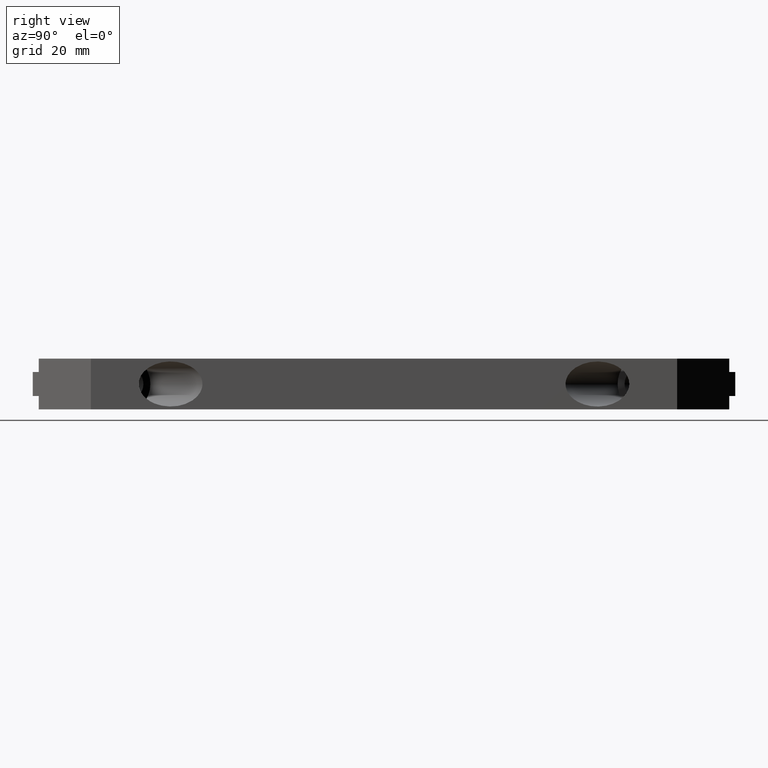
[diagram: clean part render]
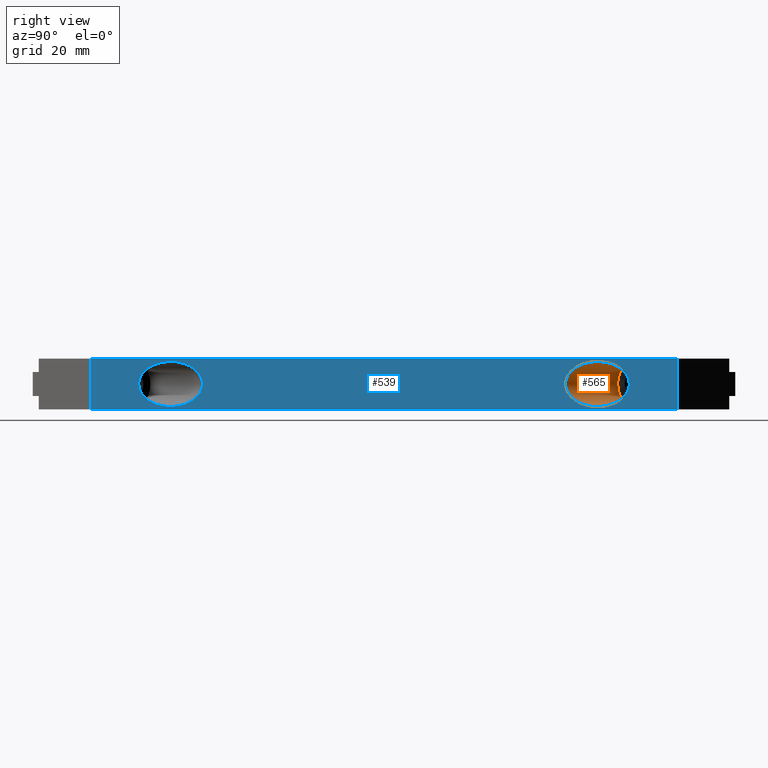
[diagram: same view with the hole feature highlighted: cylindrical wall and planar end face, labeled with their STEP entity ids]
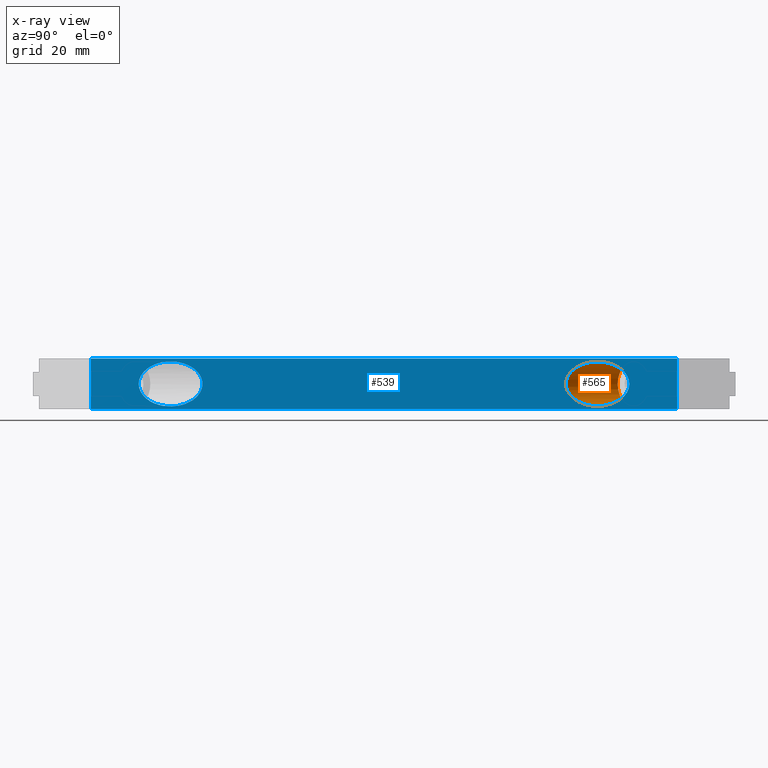
[diagram: x-ray of the same camera — body ghosted, the hole faces saturated]
A machine part, right view. The highlighted faces form one hole feature of diameter 16 mm: the cylindrical wall (entity #565, orange) and its adjacent planar end face (entity #539, blue) — they share a circular edge in the B-rep.
The next image is the same camera in x-ray (body ghosted, the hole faces saturated) — the bore reads through the body.
Wall:
#16=CYLINDRICAL_SURFACE('',#603,8.00000037595068);
#22=CIRCLE('',#602,8.00000037595068);
#31=FACE_BOUND('',#100,.T.);
#35=ELLIPSE('',#572,11.3137090306593,8.00000037595068);
#63=FACE_OUTER_BOUND('',#99,.T.);
#99=EDGE_LOOP('',(#505));
#100=EDGE_LOOP('',(#506));
#243=VERTEX_POINT('',#763);
#288=VERTEX_POINT('',#900);
#295=EDGE_CURVE('',#243,#243,#35,.T.);
#362=EDGE_CURVE('',#288,#288,#22,.T.);
#505=ORIENTED_EDGE('',*,*,#295,.T.);
#506=ORIENTED_EDGE('',*,*,#362,.T.);
#565=ADVANCED_FACE('',(#63,#31),#16,.F.);
#572=AXIS2_PLACEMENT_3D('',#764,#617,#618);
#602=AXIS2_PLACEMENT_3D('',#901,#739,#740);
#603=AXIS2_PLACEMENT_3D('',#902,#741,#742);
#617=DIRECTION('center_axis',(1.,0.,0.));
#618=DIRECTION('ref_axis',(0.,-1.,0.));
#739=DIRECTION('center_axis',(-0.707106781186548,0.707106781186548,0.));
#740=DIRECTION('ref_axis',(-0.707106781186548,-0.707106781186548,0.));
#741=DIRECTION('center_axis',(-0.707106781186548,0.707106781186548,0.));
#742=DIRECTION('ref_axis',(-0.707106781186548,-0.707106781186548,0.));
#763=CARTESIAN_POINT('',(69.9999999997199,87.0294380610606,9.));
#764=CARTESIAN_POINT('Origin',(69.9999999997199,75.7157290304013,9.));
#900=CARTESIAN_POINT('',(62.8137090304532,94.2157290303273,9.));
#901=CARTESIAN_POINT('Origin',(57.1568545151236,88.5588745149976,9.));
#902=CARTESIAN_POINT('Origin',(57.1568545151236,88.5588745149976,9.));
End face:
#25=FACE_BOUND('',#68,.T.);
#26=FACE_BOUND('',#69,.T.);
#35=ELLIPSE('',#572,11.3137090306593,8.00000037595068);
#36=ELLIPSE('',#573,11.3137090306595,8.00000037595084);
#37=FACE_OUTER_BOUND('',#67,.T.);
#67=EDGE_LOOP('',(#365,#366,#367,#368));
#68=EDGE_LOOP('',(#369));
#69=EDGE_LOOP('',(#370));
#107=LINE('',#757,#173);
#108=LINE('',#759,#174);
#109=LINE('',#761,#175);
#110=LINE('',#762,#176);
#173=VECTOR('',#613,18.);
#174=VECTOR('',#614,207.999999999168);
#175=VECTOR('',#615,18.);
#176=VECTOR('',#616,207.999999999168);
#239=VERTEX_POINT('',#755);
#240=VERTEX_POINT('',#756);
#241=VERTEX_POINT('',#758);
#242=VERTEX_POINT('',#760);
#243=VERTEX_POINT('',#763);
#244=VERTEX_POINT('',#765);
#291=EDGE_CURVE('',#239,#240,#107,.T.);
#292=EDGE_CURVE('',#240,#241,#108,.T.);
#293=EDGE_CURVE('',#242,#241,#109,.T.);
#294=EDGE_CURVE('',#239,#242,#110,.T.);
#295=EDGE_CURVE('',#243,#243,#35,.T.);
#296=EDGE_CURVE('',#244,#244,#36,.T.);
#365=ORIENTED_EDGE('',*,*,#291,.T.);
#366=ORIENTED_EDGE('',*,*,#292,.T.);
#367=ORIENTED_EDGE('',*,*,#293,.F.);
#368=ORIENTED_EDGE('',*,*,#294,.F.);
#369=ORIENTED_EDGE('',*,*,#295,.F.);
#370=ORIENTED_EDGE('',*,*,#296,.F.);
#513=PLANE('',#571);
#539=ADVANCED_FACE('',(#37,#25,#26),#513,.F.);
#571=AXIS2_PLACEMENT_3D('',#754,#611,#612);
#572=AXIS2_PLACEMENT_3D('',#764,#617,#618);
#573=AXIS2_PLACEMENT_3D('',#766,#619,#620);
#611=DIRECTION('center_axis',(-1.,0.,0.));
#612=DIRECTION('ref_axis',(0.,0.,1.));
#613=DIRECTION('',(0.,0.,-1.));
#614=DIRECTION('',(0.,1.,0.));
#615=DIRECTION('',(0.,0.,-1.));
#616=DIRECTION('',(0.,1.,0.));
#617=DIRECTION('center_axis',(1.,0.,0.));
#618=DIRECTION('ref_axis',(0.,-1.,0.));
#619=DIRECTION('center_axis',(1.,0.,0.));
#620=DIRECTION('ref_axis',(0.,-1.,0.));
#754=CARTESIAN_POINT('Origin',(69.9999999997199,-103.999999999584,18.));
#755=CARTESIAN_POINT('',(69.9999999997199,-103.999999999584,18.));
#756=CARTESIAN_POINT('',(69.9999999997199,-103.999999999584,0.));
#757=CARTESIAN_POINT('',(69.9999999997199,-103.999999999584,18.));
#758=CARTESIAN_POINT('',(69.9999999997199,103.999999999584,0.));
#759=CARTESIAN_POINT('',(69.9999999997199,-103.999999999584,0.));
#760=CARTESIAN_POINT('',(69.9999999997199,103.999999999584,18.));
#761=CARTESIAN_POINT('',(69.9999999997199,103.999999999584,18.));
#762=CARTESIAN_POINT('',(69.9999999997199,-103.999999999584,18.));
#763=CARTESIAN_POINT('',(69.9999999997199,87.0294380610606,9.));
#764=CARTESIAN_POINT('Origin',(69.9999999997199,75.7157290304013,9.));
#765=CARTESIAN_POINT('',(69.9999999997199,-87.0294380610614,9.));
#766=CARTESIAN_POINT('Origin',(69.9999999997199,-75.7157290304018,9.));